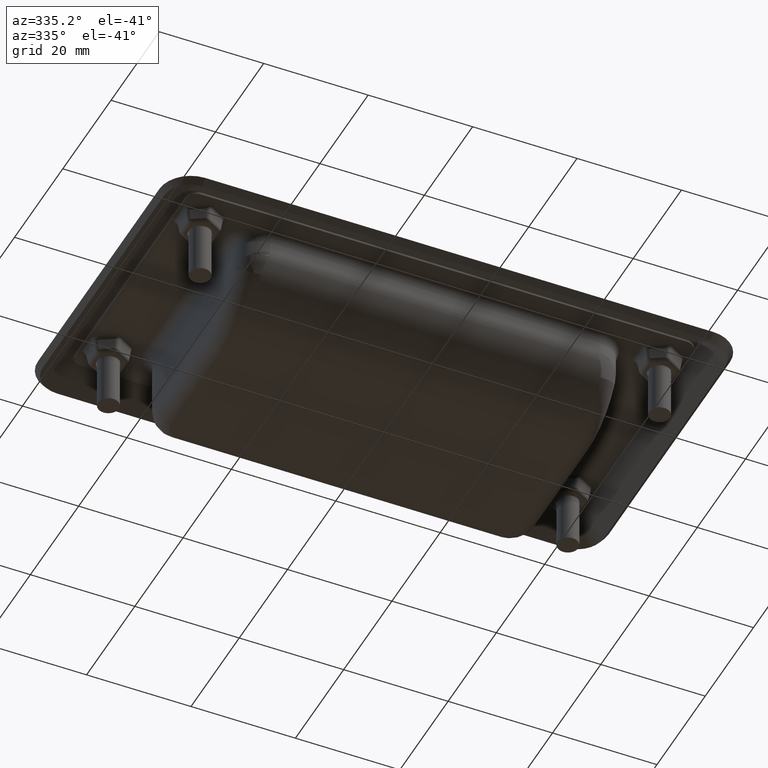
[diagram: clean part render]
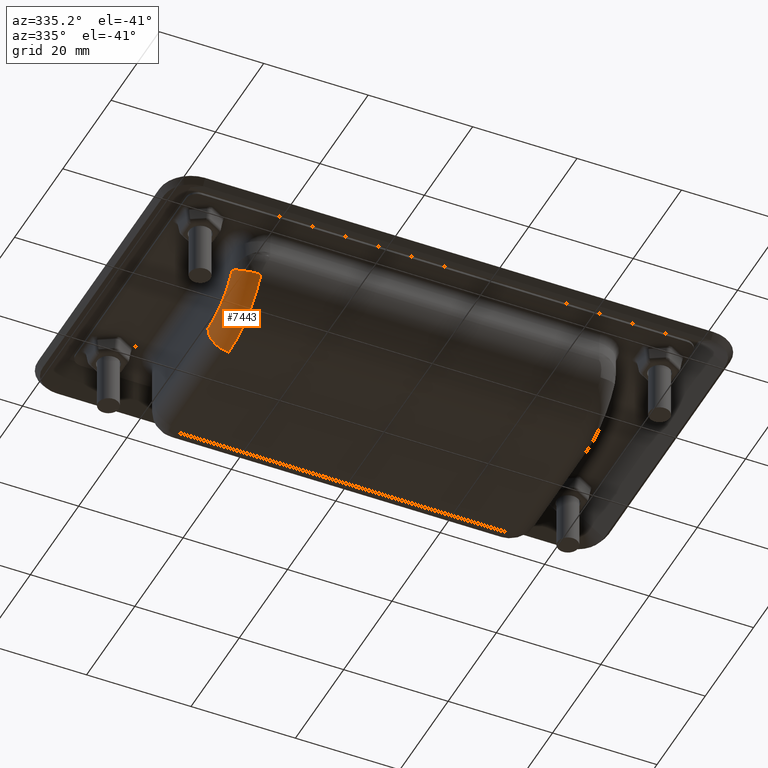
[diagram: same view with one face highlighted and labeled with its STEP entity id]
A machine part, auxiliary view. The second image highlights one B-rep face of the part: STEP entity #7443.
In plain terms, the highlighted toroidal blend (fillet) surface has major radius 11.864 mm and minor (blend) radius 4 mm.
Its self-contained STEP definition (entity closure, byte-faithful):
#30=TOROIDAL_SURFACE('',#8103,11.8640186915888,4.);
#1947=FACE_OUTER_BOUND('',#2455,.T.);
#2455=EDGE_LOOP('',(#5896,#5897,#5898,#5899));
#2877=CIRCLE('',#8085,11.8640186915888);
#2888=CIRCLE('',#8102,4.);
#2889=CIRCLE('',#8104,4.);
#2890=CIRCLE('',#8105,15.8640186915888);
#3375=VERTEX_POINT('',#13752);
#3376=VERTEX_POINT('',#13754);
#3439=VERTEX_POINT('',#14045);
#3440=VERTEX_POINT('',#14049);
#4216=EDGE_CURVE('',#3376,#3375,#2877,.T.);
#4285=EDGE_CURVE('',#3439,#3375,#2888,.T.);
#4287=EDGE_CURVE('',#3440,#3376,#2889,.T.);
#4288=EDGE_CURVE('',#3439,#3440,#2890,.T.);
#5896=ORIENTED_EDGE('',*,*,#4287,.T.);
#5897=ORIENTED_EDGE('',*,*,#4216,.T.);
#5898=ORIENTED_EDGE('',*,*,#4285,.F.);
#5899=ORIENTED_EDGE('',*,*,#4288,.T.);
#7443=ADVANCED_FACE('',(#1947),#30,.T.);
#8085=AXIS2_PLACEMENT_3D('',#13755,#9374,#9375);
#8102=AXIS2_PLACEMENT_3D('',#14046,#9442,#9443);
#8103=AXIS2_PLACEMENT_3D('',#14048,#9445,#9446);
#8104=AXIS2_PLACEMENT_3D('',#14050,#9447,#9448);
#8105=AXIS2_PLACEMENT_3D('',#14051,#9449,#9450);
#9374=DIRECTION('center_axis',(-1.,0.,0.));
#9375=DIRECTION('ref_axis',(0.,0.334435986394752,-0.942418469154849));
#9442=DIRECTION('center_axis',(0.,-1.,-3.7470027081099E-16));
#9443=DIRECTION('ref_axis',(0.,3.7470027081099E-16,-1.));
#9445=DIRECTION('center_axis',(1.,0.,0.));
#9446=DIRECTION('ref_axis',(0.,-1.,-4.47895800915082E-16));
#9447=DIRECTION('center_axis',(-2.98702280527695E-16,-0.538094191711697,
-0.842884713852455));
#9448=DIRECTION('ref_axis',(0.,0.842884713852455,-0.538094191711697));
#9449=DIRECTION('center_axis',(1.,0.,0.));
#9450=DIRECTION('ref_axis',(0.,0.334435986394752,-0.942418469154849));
#13752=CARTESIAN_POINT('',(36.5,6.,-57.2));
#13754=CARTESIAN_POINT('',(36.5,16.,-51.7199408567141));
#13755=CARTESIAN_POINT('Origin',(36.5,5.99999999999999,-45.3359813084112));
#14045=CARTESIAN_POINT('',(32.5,6.,-61.2));
#14046=CARTESIAN_POINT('Origin',(32.5,6.,-57.2));
#14048=CARTESIAN_POINT('Origin',(32.5,5.99999999999999,-45.3359813084112));
#14049=CARTESIAN_POINT('',(32.5,19.3715388554098,-53.8723176235609));
#14050=CARTESIAN_POINT('Origin',(32.5,16.,-51.7199408567141));
#14051=CARTESIAN_POINT('Origin',(32.5,5.99999999999999,-45.3359813084112));